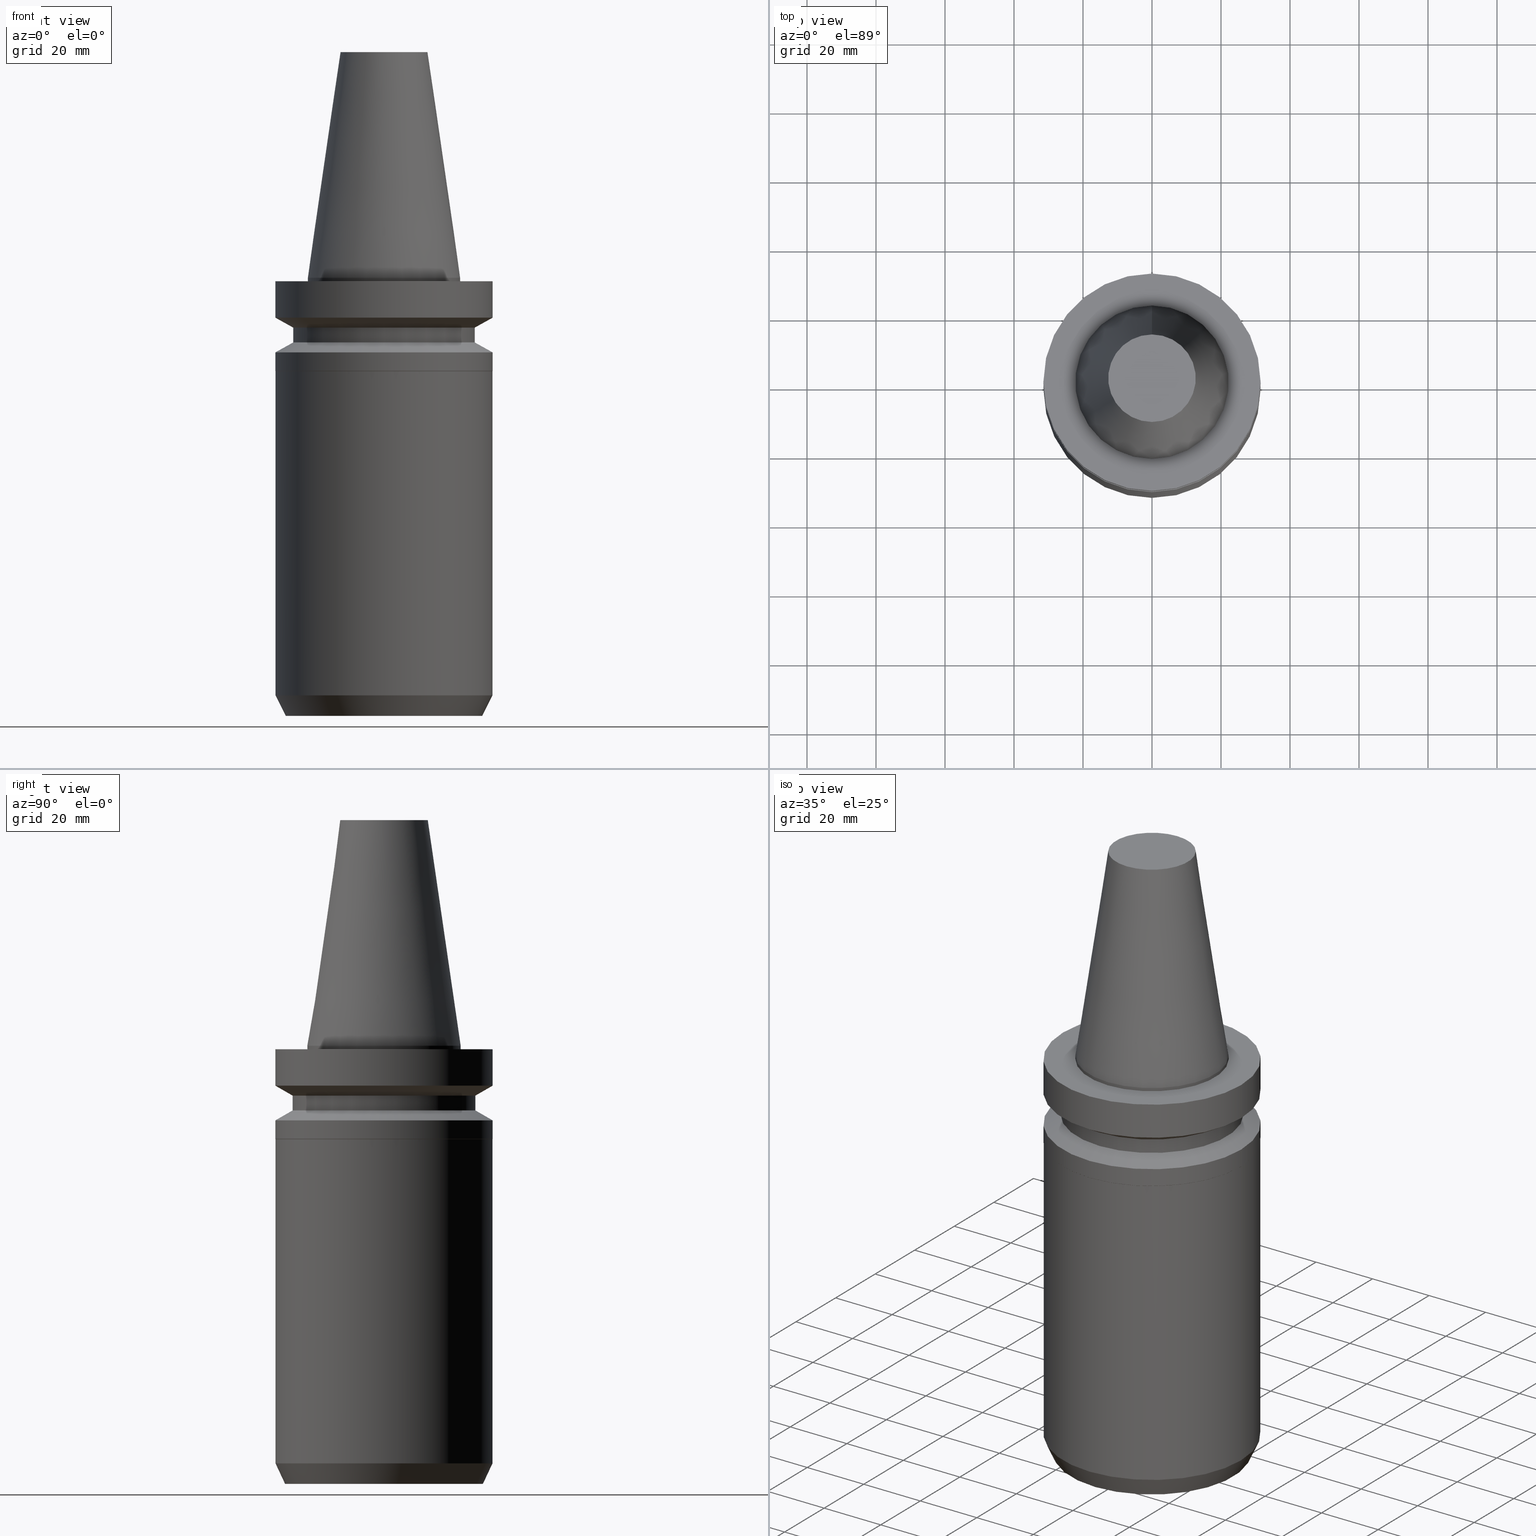
[diagram: canonical four-view strip — front | top / right | iso, engineering-drawing reading convention]
A machine part, canonical four-view strip (front | top / right | iso — engineering-drawing reading convention). The complete STEP part file that produces these views, byte-faithful:
ISO-10303-21;
HEADER;
FILE_DESCRIPTION((''),'1');
FILE_NAME('V:/90_\X2\53D65F9730C730FC30BF\X0\/00_\X2\6DE18DEF30C730FC30BF\X0\/ALL/BBT-BKUS\X2\FF76FF80FF9BFF78FF9E752852A05DE556F3\X0\201801/BBT40-HDC/BBT40-HDC1.250-5.stp','2018-02-07T05:26:37',(''),(''),'Spatial Interop R21 SP3','Kubotek KeyCreator 2011 V10.0.2 (22737)',' ');
FILE_SCHEMA(('automotive_design'));
ENDSEC;
DATA;
#1=MECHANICAL_DESIGN_GEOMETRIC_PRESENTATION_REPRESENTATION(' ',(#10,#11,#12,#13,#14,#15,#16,#17,#18,#19,#20,#21,#22,#23,#24,#25,#26,#27,#28,#29,#30,#31,#32,#33,#34,#35),#6);
#2=PRODUCT_DEFINITION_CONTEXT('',#36,'design');
#3=APPLICATION_PROTOCOL_DEFINITION('INTERNATIONAL STANDARD','automotive_design',1994,#36);
#4=PRODUCT_CATEGORY_RELATIONSHIP('NONE','NONE',#37,#38);
#5=SHAPE_DEFINITION_REPRESENTATION(#39,#40);
#6= (GEOMETRIC_REPRESENTATION_CONTEXT(3)GLOBAL_UNCERTAINTY_ASSIGNED_CONTEXT((#43))GLOBAL_UNIT_ASSIGNED_CONTEXT((#45,#46,#47))REPRESENTATION_CONTEXT('NONE','WORKSPACE'));
#10=STYLED_ITEM('',(#49,#50),#51);
#11=STYLED_ITEM('',(#52,#53),#54);
#12=STYLED_ITEM('',(#55),#56);
#13=STYLED_ITEM('',(#57,#58),#59);
#14=STYLED_ITEM('',(#60),#61);
#15=STYLED_ITEM('',(#62,#63),#64);
#16=STYLED_ITEM('',(#65),#66);
#17=STYLED_ITEM('',(#67),#68);
#18=STYLED_ITEM('',(#69),#70);
#19=STYLED_ITEM('',(#71),#72);
#20=STYLED_ITEM('',(#73,#74),#75);
#21=STYLED_ITEM('',(#76,#77),#78);
#22=STYLED_ITEM('',(#79,#80),#81);
#23=STYLED_ITEM('',(#82),#83);
#24=STYLED_ITEM('',(#84,#85),#86);
#25=STYLED_ITEM('',(#87),#88);
#26=STYLED_ITEM('',(#89,#90),#91);
#27=STYLED_ITEM('',(#92),#93);
#28=STYLED_ITEM('',(#94,#95),#96);
#29=STYLED_ITEM('',(#97,#98),#99);
#30=STYLED_ITEM('',(#100,#101),#102);
#31=STYLED_ITEM('',(#103,#104),#105);
#32=STYLED_ITEM('',(#106,#107),#108);
#33=STYLED_ITEM('',(#109),#110);
#34=STYLED_ITEM('',(#111),#112);
#35=STYLED_ITEM('',(#113),#114);
#36=APPLICATION_CONTEXT(' ');
#37=PRODUCT_CATEGORY('part','NONE');
#38=PRODUCT_RELATED_PRODUCT_CATEGORY('detail',' ',(#115));
#39=PRODUCT_DEFINITION_SHAPE('NONE','NONE',#116);
#40=ADVANCED_BREP_SHAPE_REPRESENTATION('Unnamed[1]',(#75,#117),#6);
#43=UNCERTAINTY_MEASURE_WITH_UNIT(LENGTH_MEASURE(1.0E-006),#45,'','');
#45= (CONVERSION_BASED_UNIT('MILLIMETRE',#120)LENGTH_UNIT()NAMED_UNIT(#123));
#46= (NAMED_UNIT(#125)PLANE_ANGLE_UNIT()SI_UNIT($,.RADIAN.));
#47= (NAMED_UNIT(#125)SOLID_ANGLE_UNIT()SI_UNIT($,.STERADIAN.));
#49=PRESENTATION_STYLE_ASSIGNMENT((#131));
#50=PRESENTATION_STYLE_ASSIGNMENT((#132));
#51=ADVANCED_FACE('Unnamed[1]',(#133,#134),#135,.T.);
#52=PRESENTATION_STYLE_ASSIGNMENT((#136));
#53=PRESENTATION_STYLE_ASSIGNMENT((#137));
#54=ADVANCED_FACE('Unnamed[1]',(#138,#139),#140,.T.);
#55=PRESENTATION_STYLE_ASSIGNMENT((#141));
#56=EDGE_CURVE('Unnamed[1]',#142,#142,#143,.T.);
#57=PRESENTATION_STYLE_ASSIGNMENT((#144));
#58=PRESENTATION_STYLE_ASSIGNMENT((#145));
#59=ADVANCED_FACE('Unnamed[1]',(#146,#147),#148,.T.);
#60=PRESENTATION_STYLE_ASSIGNMENT((#149));
#61=EDGE_CURVE('Unnamed[1]',#150,#150,#151,.T.);
#62=PRESENTATION_STYLE_ASSIGNMENT((#152));
#63=PRESENTATION_STYLE_ASSIGNMENT((#153));
#64=ADVANCED_FACE('Unnamed[1]',(#154,#155),#156,.T.);
#65=PRESENTATION_STYLE_ASSIGNMENT((#157));
#66=EDGE_CURVE('Unnamed[1]',#158,#158,#159,.T.);
#67=PRESENTATION_STYLE_ASSIGNMENT((#160));
#68=EDGE_CURVE('Unnamed[1]',#161,#161,#162,.T.);
#69=PRESENTATION_STYLE_ASSIGNMENT((#163));
#70=EDGE_CURVE('Unnamed[1]',#164,#164,#165,.T.);
#71=PRESENTATION_STYLE_ASSIGNMENT((#166));
#72=EDGE_CURVE('Unnamed[1]',#167,#167,#168,.T.);
#73=PRESENTATION_STYLE_ASSIGNMENT((#169));
#74=PRESENTATION_STYLE_ASSIGNMENT((#170));
#75=MANIFOLD_SOLID_BREP('Unnamed[1]',#171);
#76=PRESENTATION_STYLE_ASSIGNMENT((#172));
#77=PRESENTATION_STYLE_ASSIGNMENT((#173));
#78=ADVANCED_FACE('Unnamed[1]',(#174,#175),#176,.T.);
#79=PRESENTATION_STYLE_ASSIGNMENT((#177));
#80=PRESENTATION_STYLE_ASSIGNMENT((#178));
#81=ADVANCED_FACE('Unnamed[1]',(#179,#180),#181,.T.);
#82=PRESENTATION_STYLE_ASSIGNMENT((#182));
#83=EDGE_CURVE('Unnamed[1]',#183,#183,#184,.T.);
#84=PRESENTATION_STYLE_ASSIGNMENT((#185));
#85=PRESENTATION_STYLE_ASSIGNMENT((#186));
#86=ADVANCED_FACE('Unnamed[1]',(#187,#188),#189,.T.);
#87=PRESENTATION_STYLE_ASSIGNMENT((#190));
#88=EDGE_CURVE('Unnamed[1]',#191,#191,#192,.T.);
#89=PRESENTATION_STYLE_ASSIGNMENT((#193));
#90=PRESENTATION_STYLE_ASSIGNMENT((#194));
#91=ADVANCED_FACE('Unnamed[1]',(#195,#196),#197,.T.);
#92=PRESENTATION_STYLE_ASSIGNMENT((#198));
#93=EDGE_CURVE('Unnamed[1]',#199,#199,#200,.T.);
#94=PRESENTATION_STYLE_ASSIGNMENT((#201));
#95=PRESENTATION_STYLE_ASSIGNMENT((#202));
#96=ADVANCED_FACE('Unnamed[1]',(#203,#204),#205,.T.);
#97=PRESENTATION_STYLE_ASSIGNMENT((#206));
#98=PRESENTATION_STYLE_ASSIGNMENT((#207));
#99=ADVANCED_FACE('Unnamed[1]',(#208,#209),#210,.T.);
#100=PRESENTATION_STYLE_ASSIGNMENT((#211));
#101=PRESENTATION_STYLE_ASSIGNMENT((#212));
#102=ADVANCED_FACE('Unnamed[1]',(#213),#214,.T.);
#103=PRESENTATION_STYLE_ASSIGNMENT((#215));
#104=PRESENTATION_STYLE_ASSIGNMENT((#216));
#105=ADVANCED_FACE('Unnamed[1]',(#217),#218,.T.);
#106=PRESENTATION_STYLE_ASSIGNMENT((#219));
#107=PRESENTATION_STYLE_ASSIGNMENT((#220));
#108=ADVANCED_FACE('Unnamed[1]',(#221,#222),#223,.T.);
#109=PRESENTATION_STYLE_ASSIGNMENT((#224));
#110=EDGE_CURVE('Unnamed[1]',#225,#225,#226,.T.);
#111=PRESENTATION_STYLE_ASSIGNMENT((#227));
#112=EDGE_CURVE('Unnamed[1]',#228,#228,#229,.T.);
#113=PRESENTATION_STYLE_ASSIGNMENT((#230));
#114=EDGE_CURVE('Unnamed[1]',#231,#231,#232,.T.);
#115=PRODUCT('Unnamed[1]','Unnamed[1]','PART-Unnamed[1]-DESC',(#233));
#116=PRODUCT_DEFINITION('NONE','NONE',#234,#2);
#117=AXIS2_PLACEMENT_3D('',#235,#236,#237);
#120=LENGTH_MEASURE_WITH_UNIT(LENGTH_MEASURE(1.0),#238);
#123=DIMENSIONAL_EXPONENTS(1.0,0.0,0.0,0.0,0.0,0.0,0.0);
#125=DIMENSIONAL_EXPONENTS(0.0,0.0,0.0,0.0,0.0,0.0,0.0);
#131=SURFACE_STYLE_USAGE(.BOTH.,#239);
#132=CURVE_STYLE('',#240,POSITIVE_LENGTH_MEASURE(1000.0),#241);
#133=FACE_BOUND('',#242,.T.);
#134=FACE_BOUND('',#243,.T.);
#135=CYLINDRICAL_SURFACE('',#244,31.5000000000005);
#136=SURFACE_STYLE_USAGE(.BOTH.,#245);
#137=CURVE_STYLE('',#246,POSITIVE_LENGTH_MEASURE(1000.0),#247);
#138=FACE_BOUND('',#248,.T.);
#139=FACE_BOUND('',#249,.T.);
#140=CONICAL_SURFACE('',#250,31.4750000000003,0.785398163388566);
#141=CURVE_STYLE('',#251,POSITIVE_LENGTH_MEASURE(1000.0),#252);
#142=VERTEX_POINT('',#253);
#143=CIRCLE('',#254,31.5000000000003);
#144=SURFACE_STYLE_USAGE(.BOTH.,#255);
#145=CURVE_STYLE('',#256,POSITIVE_LENGTH_MEASURE(1000.0),#257);
#146=FACE_BOUND('',#258,.T.);
#147=FACE_BOUND('',#259,.T.);
#148=CONICAL_SURFACE('',#260,17.4562500000001,0.144812498238936);
#149=CURVE_STYLE('',#261,POSITIVE_LENGTH_MEASURE(1000.0),#262);
#150=VERTEX_POINT('',#263);
#151=CIRCLE('',#264,26.4999999999994);
#152=SURFACE_STYLE_USAGE(.BOTH.,#265);
#153=CURVE_STYLE('',#266,POSITIVE_LENGTH_MEASURE(1000.0),#267);
#154=FACE_BOUND('',#268,.T.);
#155=FACE_BOUND('',#269,.T.);
#156=CONICAL_SURFACE('',#270,28.9999999999999,1.04719755119657);
#157=CURVE_STYLE('',#271,POSITIVE_LENGTH_MEASURE(1000.0),#272);
#158=VERTEX_POINT('',#273);
#159=CIRCLE('',#274,31.4500000000001);
#160=CURVE_STYLE('',#275,POSITIVE_LENGTH_MEASURE(1000.0),#276);
#161=VERTEX_POINT('',#277);
#162=CIRCLE('',#278,31.5000000000007);
#163=CURVE_STYLE('',#279,POSITIVE_LENGTH_MEASURE(1000.0),#280);
#164=VERTEX_POINT('',#281);
#165=CIRCLE('',#282,31.5000000000003);
#166=CURVE_STYLE('',#283,POSITIVE_LENGTH_MEASURE(1000.0),#284);
#167=VERTEX_POINT('',#285);
#168=CIRCLE('',#286,28.6735846392919);
#169=SURFACE_STYLE_USAGE(.BOTH.,#287);
#170=CURVE_STYLE('',#288,POSITIVE_LENGTH_MEASURE(1000.0),#289);
#171=CLOSED_SHELL('',(#102,#59,#99,#96,#108,#64,#78,#91,#51,#54,#86,#81,#105));
#172=SURFACE_STYLE_USAGE(.BOTH.,#290);
#173=CURVE_STYLE('',#291,POSITIVE_LENGTH_MEASURE(1000.0),#292);
#174=FACE_BOUND('',#293,.T.);
#175=FACE_BOUND('',#294,.T.);
#176=CYLINDRICAL_SURFACE('',#295,26.4999999999997);
#177=SURFACE_STYLE_USAGE(.BOTH.,#296);
#178=CURVE_STYLE('',#297,POSITIVE_LENGTH_MEASURE(1000.0),#298);
#179=FACE_BOUND('',#299,.T.);
#180=FACE_BOUND('',#300,.T.);
#181=CONICAL_SURFACE('',#301,30.061792319646,0.436332312998583);
#182=CURVE_STYLE('',#302,POSITIVE_LENGTH_MEASURE(1000.0),#303);
#183=VERTEX_POINT('',#304);
#184=CIRCLE('',#305,22.225);
#185=SURFACE_STYLE_USAGE(.BOTH.,#306);
#186=CURVE_STYLE('',#307,POSITIVE_LENGTH_MEASURE(1000.0),#308);
#187=FACE_BOUND('',#309,.T.);
#188=FACE_BOUND('',#310,.T.);
#189=CYLINDRICAL_SURFACE('',#311,31.4500000000001);
#190=CURVE_STYLE('',#312,POSITIVE_LENGTH_MEASURE(1000.0),#313);
#191=VERTEX_POINT('',#314);
#192=CIRCLE('',#315,12.6875000000001);
#193=SURFACE_STYLE_USAGE(.BOTH.,#316);
#194=CURVE_STYLE('',#317,POSITIVE_LENGTH_MEASURE(1000.0),#318);
#195=FACE_BOUND('',#319,.T.);
#196=FACE_BOUND('',#320,.T.);
#197=CONICAL_SURFACE('',#321,29.0000000000003,1.04719755119651);
#198=CURVE_STYLE('',#322,POSITIVE_LENGTH_MEASURE(1000.0),#323);
#199=VERTEX_POINT('',#324);
#200=CIRCLE('',#325,31.4999999999996);
#201=SURFACE_STYLE_USAGE(.BOTH.,#326);
#202=CURVE_STYLE('',#327,POSITIVE_LENGTH_MEASURE(1000.0),#328);
#203=FACE_OUTER_BOUND('',#329,.T.);
#204=FACE_BOUND('',#330,.T.);
#205=PLANE('',#331);
#206=SURFACE_STYLE_USAGE(.BOTH.,#332);
#207=CURVE_STYLE('',#333,POSITIVE_LENGTH_MEASURE(1000.0),#334);
#208=FACE_BOUND('',#335,.T.);
#209=FACE_BOUND('',#336,.T.);
#210=CYLINDRICAL_SURFACE('',#337,22.225);
#211=SURFACE_STYLE_USAGE(.BOTH.,#338);
#212=CURVE_STYLE('',#339,POSITIVE_LENGTH_MEASURE(1000.0),#340);
#213=FACE_OUTER_BOUND('',#341,.T.);
#214=PLANE('',#342);
#215=SURFACE_STYLE_USAGE(.BOTH.,#343);
#216=CURVE_STYLE('',#344,POSITIVE_LENGTH_MEASURE(1000.0),#345);
#217=FACE_OUTER_BOUND('',#346,.T.);
#218=PLANE('',#347);
#219=SURFACE_STYLE_USAGE(.BOTH.,#348);
#220=CURVE_STYLE('',#349,POSITIVE_LENGTH_MEASURE(1000.0),#350);
#221=FACE_BOUND('',#351,.T.);
#222=FACE_BOUND('',#352,.T.);
#223=CYLINDRICAL_SURFACE('',#353,31.5);
#224=CURVE_STYLE('',#354,POSITIVE_LENGTH_MEASURE(1000.0),#355);
#225=VERTEX_POINT('',#356);
#226=CIRCLE('',#357,26.5);
#227=CURVE_STYLE('',#358,POSITIVE_LENGTH_MEASURE(1000.0),#359);
#228=VERTEX_POINT('',#360);
#229=CIRCLE('',#361,31.4500000000002);
#230=CURVE_STYLE('',#362,POSITIVE_LENGTH_MEASURE(1000.0),#363);
#231=VERTEX_POINT('',#364);
#232=CIRCLE('',#365,22.225);
#233=PRODUCT_CONTEXT('',#36,'mechanical');
#234=PRODUCT_DEFINITION_FORMATION_WITH_SPECIFIED_SOURCE(' ','NONE',#115,.NOT_KNOWN.);
#235=CARTESIAN_POINT('',(0.0,0.0,0.0));
#236=DIRECTION('',(0.0,0.0,1.0));
#237=DIRECTION('',(1.0,0.0,0.0));
#238= (NAMED_UNIT(#123)LENGTH_UNIT()SI_UNIT(.MILLI.,.METRE.));
#239=SURFACE_SIDE_STYLE('',(#367));
#240=DRAUGHTING_PRE_DEFINED_CURVE_FONT('continuous');
#241=COLOUR_RGB('',0.0,1.0,0.0);
#242=EDGE_LOOP('',(#368));
#243=EDGE_LOOP('',(#369));
#244=AXIS2_PLACEMENT_3D('',#370,#371,#372);
#245=SURFACE_SIDE_STYLE('',(#373));
#246=DRAUGHTING_PRE_DEFINED_CURVE_FONT('continuous');
#247=COLOUR_RGB('',0.0,1.0,0.0);
#248=EDGE_LOOP('',(#374));
#249=EDGE_LOOP('',(#375));
#250=AXIS2_PLACEMENT_3D('',#376,#377,#378);
#251=DRAUGHTING_PRE_DEFINED_CURVE_FONT('continuous');
#252=COLOUR_RGB('',0.0,1.0,0.0);
#253=CARTESIAN_POINT('',(1.65327317884893E-015,31.5000000000004,-27.0));
#254=AXIS2_PLACEMENT_3D('',#379,#380,#381);
#255=SURFACE_SIDE_STYLE('',(#382));
#256=DRAUGHTING_PRE_DEFINED_CURVE_FONT('continuous');
#257=COLOUR_RGB('',0.0,1.0,0.0);
#258=EDGE_LOOP('',(#383));
#259=EDGE_LOOP('',(#384));
#260=AXIS2_PLACEMENT_3D('',#385,#386,#387);
#261=DRAUGHTING_PRE_DEFINED_CURVE_FONT('continuous');
#262=COLOUR_RGB('',0.0,1.0,0.0);
#263=CARTESIAN_POINT('',(8.8494551369045E-016,26.4999999999995,-14.4522569986152));
#264=AXIS2_PLACEMENT_3D('',#388,#389,#390);
#265=SURFACE_SIDE_STYLE('',(#391));
#266=DRAUGHTING_PRE_DEFINED_CURVE_FONT('continuous');
#267=COLOUR_RGB('',0.0,1.0,0.0);
#268=EDGE_LOOP('',(#392));
#269=EDGE_LOOP('',(#393));
#270=AXIS2_PLACEMENT_3D('',#394,#395,#396);
#271=DRAUGHTING_PRE_DEFINED_CURVE_FONT('continuous');
#272=COLOUR_RGB('',0.0,1.0,0.0);
#273=CARTESIAN_POINT('',(7.41192725346147E-015,31.4500000000001,-121.045958044751));
#274=AXIS2_PLACEMENT_3D('',#397,#398,#399);
#275=DRAUGHTING_PRE_DEFINED_CURVE_FONT('continuous');
#276=COLOUR_RGB('',0.0,1.0,0.0);
#277=CARTESIAN_POINT('',(1.32473071268174E-015,31.5000000000007,-21.6344943473346));
#278=AXIS2_PLACEMENT_3D('',#400,#401,#402);
#279=DRAUGHTING_PRE_DEFINED_CURVE_FONT('continuous');
#280=COLOUR_RGB('',0.0,1.0,0.0);
#281=CARTESIAN_POINT('',(7.08182973902924E-016,31.5000000000004,-11.5655056526664));
#282=AXIS2_PLACEMENT_3D('',#403,#404,#405);
#283=DRAUGHTING_PRE_DEFINED_CURVE_FONT('continuous');
#284=COLOUR_RGB('',0.0,1.0,0.0);
#285=CARTESIAN_POINT('',(7.77650717458563E-015,28.6735846392919,-126.999999999999));
#286=AXIS2_PLACEMENT_3D('',#406,#407,#408);
#287=SURFACE_SIDE_STYLE('',(#409));
#288=DRAUGHTING_PRE_DEFINED_CURVE_FONT('continuous');
#289=COLOUR_RGB('',0.0,1.0,0.0);
#290=SURFACE_SIDE_STYLE('',(#410));
#291=DRAUGHTING_PRE_DEFINED_CURVE_FONT('continuous');
#292=COLOUR_RGB('',0.0,1.0,0.0);
#293=EDGE_LOOP('',(#411));
#294=EDGE_LOOP('',(#412));
#295=AXIS2_PLACEMENT_3D('',#413,#414,#415);
#296=SURFACE_SIDE_STYLE('',(#416));
#297=DRAUGHTING_PRE_DEFINED_CURVE_FONT('continuous');
#298=COLOUR_RGB('',0.0,1.0,0.0);
#299=EDGE_LOOP('',(#417));
#300=EDGE_LOOP('',(#418));
#301=AXIS2_PLACEMENT_3D('',#419,#420,#421);
#302=DRAUGHTING_PRE_DEFINED_CURVE_FONT('continuous');
#303=COLOUR_RGB('',0.0,1.0,0.0);
#304=CARTESIAN_POINT('',(1.71319921032766E-029,22.2250000000001,-2.8153873565375E-013));
#305=AXIS2_PLACEMENT_3D('',#422,#423,#424);
#306=SURFACE_SIDE_STYLE('',(#425));
#307=DRAUGHTING_PRE_DEFINED_CURVE_FONT('continuous');
#308=COLOUR_RGB('',0.0,1.0,0.0);
#309=EDGE_LOOP('',(#426));
#310=EDGE_LOOP('',(#427));
#311=AXIS2_PLACEMENT_3D('',#428,#429,#430);
#312=DRAUGHTING_PRE_DEFINED_CURVE_FONT('continuous');
#313=COLOUR_RGB('',0.0,1.0,0.0);
#314=CARTESIAN_POINT('',(-4.00459503321185E-015,12.6875000000002,65.4000000000001));
#315=AXIS2_PLACEMENT_3D('',#431,#432,#433);
#316=SURFACE_SIDE_STYLE('',(#434));
#317=DRAUGHTING_PRE_DEFINED_CURVE_FONT('continuous');
#318=COLOUR_RGB('',0.0,1.0,0.0);
#319=EDGE_LOOP('',(#435));
#320=EDGE_LOOP('',(#436));
#321=AXIS2_PLACEMENT_3D('',#437,#438,#439);
#322=DRAUGHTING_PRE_DEFINED_CURVE_FONT('continuous');
#323=COLOUR_RGB('',0.0,1.0,0.0);
#324=CARTESIAN_POINT('',(6.12323399573568E-017,31.4999999999997,-0.999999999999825));
#325=AXIS2_PLACEMENT_3D('',#440,#441,#442);
#326=SURFACE_SIDE_STYLE('',(#443));
#327=DRAUGHTING_PRE_DEFINED_CURVE_FONT('continuous');
#328=COLOUR_RGB('',0.0,1.0,0.0);
#329=EDGE_LOOP('',(#444));
#330=EDGE_LOOP('',(#445));
#331=AXIS2_PLACEMENT_3D('',#446,#447,#448);
#332=SURFACE_SIDE_STYLE('',(#449));
#333=DRAUGHTING_PRE_DEFINED_CURVE_FONT('continuous');
#334=COLOUR_RGB('',0.0,1.0,0.0);
#335=EDGE_LOOP('',(#450));
#336=EDGE_LOOP('',(#451));
#337=AXIS2_PLACEMENT_3D('',#452,#453,#454);
#338=SURFACE_SIDE_STYLE('',(#455));
#339=DRAUGHTING_PRE_DEFINED_CURVE_FONT('continuous');
#340=COLOUR_RGB('',0.0,1.0,0.0);
#341=EDGE_LOOP('',(#456));
#342=AXIS2_PLACEMENT_3D('',#457,#458,#459);
#343=SURFACE_SIDE_STYLE('',(#460));
#344=DRAUGHTING_PRE_DEFINED_CURVE_FONT('continuous');
#345=COLOUR_RGB('',0.0,1.0,0.0);
#346=EDGE_LOOP('',(#461));
#347=AXIS2_PLACEMENT_3D('',#462,#463,#464);
#348=SURFACE_SIDE_STYLE('',(#465));
#349=DRAUGHTING_PRE_DEFINED_CURVE_FONT('continuous');
#350=COLOUR_RGB('',0.0,1.0,0.0);
#351=EDGE_LOOP('',(#466));
#352=EDGE_LOOP('',(#467));
#353=AXIS2_PLACEMENT_3D('',#468,#469,#470);
#354=DRAUGHTING_PRE_DEFINED_CURVE_FONT('continuous');
#355=COLOUR_RGB('',0.0,1.0,0.0);
#356=CARTESIAN_POINT('',(1.1479681728942E-015,26.5,-18.7477430013855));
#357=AXIS2_PLACEMENT_3D('',#471,#472,#473);
#358=DRAUGHTING_PRE_DEFINED_CURVE_FONT('continuous');
#359=COLOUR_RGB('',0.0,1.0,0.0);
#360=CARTESIAN_POINT('',(1.65633479584686E-015,31.4500000000002,-27.0500000000011));
#361=AXIS2_PLACEMENT_3D('',#474,#475,#476);
#362=DRAUGHTING_PRE_DEFINED_CURVE_FONT('continuous');
#363=COLOUR_RGB('',0.0,1.0,0.0);
#364=CARTESIAN_POINT('',(6.12323399573622E-017,22.2250000000001,-0.999999999999912));
#365=AXIS2_PLACEMENT_3D('',#477,#478,#479);
#367=SURFACE_STYLE_FILL_AREA(#480);
#368=ORIENTED_EDGE('',*,*,#56,.F.);
#369=ORIENTED_EDGE('',*,*,#68,.T.);
#370=CARTESIAN_POINT('',(1.48900194576534E-015,4.84645246943302E-014,-24.3172471736673));
#371=DIRECTION('',(6.12323399573677E-017,-3.16409739642793E-016,-1.0));
#372=DIRECTION('',(1.45473560128601E-032,1.0,-3.16409739642793E-016));
#373=SURFACE_STYLE_FILL_AREA(#481);
#374=ORIENTED_EDGE('',*,*,#112,.F.);
#375=ORIENTED_EDGE('',*,*,#56,.T.);
#376=CARTESIAN_POINT('',(1.6548039873479E-015,4.7607765327533E-014,-27.0250000000006));
#377=DIRECTION('',(-6.12323399573676E-017,3.16409739642798E-016,1.0));
#378=DIRECTION('',(1.45473560128629E-032,1.0,-3.16409739642798E-016));
#379=CARTESIAN_POINT('',(1.65327317884893E-015,4.76156755710243E-014,-27.0));
#380=DIRECTION('',(6.12323399573676E-017,-3.16409739642795E-016,-1.0));
#381=DIRECTION('',(1.45473560128602E-032,1.0,-3.16409739642795E-016));
#382=SURFACE_STYLE_FILL_AREA(#482);
#383=ORIENTED_EDGE('',*,*,#83,.F.);
#384=ORIENTED_EDGE('',*,*,#88,.T.);
#385=CARTESIAN_POINT('',(-2.00229751660592E-015,6.65053370276992E-014,32.6999999999999));
#386=DIRECTION('',(6.12323399573677E-017,-3.16409739642807E-016,-1.0));
#387=DIRECTION('',(1.45473560128573E-032,1.0,-3.16409739642807E-016));
#388=CARTESIAN_POINT('',(8.84945513690449E-016,5.15859036671972E-014,-14.4522569986152));
#389=DIRECTION('',(6.12323399573676E-017,-3.16409739642818E-016,-1.0));
#390=DIRECTION('',(1.45473560128599E-032,1.0,-3.16409739642818E-016));
#391=SURFACE_STYLE_FILL_AREA(#483);
#392=ORIENTED_EDGE('',*,*,#61,.F.);
#393=ORIENTED_EDGE('',*,*,#70,.T.);
#394=CARTESIAN_POINT('',(7.96564243796687E-016,5.20426017880898E-014,-13.0088813256408));
#395=DIRECTION('',(-6.12323399573677E-017,3.16409739642778E-016,1.0));
#396=DIRECTION('',(1.4547356012857E-032,1.0,-3.16409739642778E-016));
#397=CARTESIAN_POINT('',(7.41192725346147E-015,1.78586184716271E-014,-121.045958044751));
#398=DIRECTION('',(6.12323399573677E-017,-3.16409739642802E-016,-1.0));
#399=DIRECTION('',(1.45473560128628E-032,1.0,-3.16409739642802E-016));
#400=CARTESIAN_POINT('',(1.32473071268174E-015,4.93133738176361E-014,-21.6344943473346));
#401=DIRECTION('',(6.12323399573677E-017,-3.16409739642792E-016,-1.0));
#402=DIRECTION('',(1.45473560128572E-032,1.0,-3.16409739642792E-016));
#403=CARTESIAN_POINT('',(7.08182973902923E-016,5.24992999089823E-014,-11.5655056526663));
#404=DIRECTION('',(6.12323399573677E-017,-3.16409739642795E-016,-1.0));
#405=DIRECTION('',(1.45473560128602E-032,1.0,-3.16409739642795E-016));
#406=CARTESIAN_POINT('',(7.77650717458563E-015,1.59747016067449E-014,-126.999999999999));
#407=DIRECTION('',(6.12323399573677E-017,-3.1640973964281E-016,-1.0));
#408=DIRECTION('',(1.45473560128616E-032,1.0,-3.1640973964281E-016));
#409=SURFACE_STYLE_FILL_AREA(#484);
#410=SURFACE_STYLE_FILL_AREA(#485);
#411=ORIENTED_EDGE('',*,*,#110,.F.);
#412=ORIENTED_EDGE('',*,*,#61,.T.);
#413=CARTESIAN_POINT('',(1.01645684329232E-015,5.09063368633093E-014,-16.6000000000003));
#414=DIRECTION('',(6.12323399573677E-017,-3.16409739642814E-016,-1.0));
#415=DIRECTION('',(1.45473560128632E-032,1.0,-3.16409739642814E-016));
#416=SURFACE_STYLE_FILL_AREA(#486);
#417=ORIENTED_EDGE('',*,*,#72,.F.);
#418=ORIENTED_EDGE('',*,*,#66,.T.);
#419=CARTESIAN_POINT('',(7.59421721402355E-015,1.6916660039186E-014,-124.022979022375));
#420=DIRECTION('',(-6.12323399573677E-017,3.16409739642806E-016,1.0));
#421=DIRECTION('',(1.45473560128578E-032,1.0,-3.16409739642806E-016));
#422=CARTESIAN_POINT('',(1.65331138531142E-029,5.61587385413797E-014,-2.70006239588838E-013));
#423=DIRECTION('',(6.12323399573677E-017,-3.16409739642804E-016,-1.0));
#424=DIRECTION('',(1.45473560128617E-032,1.0,-3.16409739642804E-016));
#425=SURFACE_STYLE_FILL_AREA(#487);
#426=ORIENTED_EDGE('',*,*,#66,.F.);
#427=ORIENTED_EDGE('',*,*,#112,.T.);
#428=CARTESIAN_POINT('',(4.53413102465417E-015,3.27292367778345E-014,-74.0479790223762));
#429=DIRECTION('',(6.12323399573677E-017,-3.16409739642802E-016,-1.0));
#430=DIRECTION('',(1.45473560128656E-032,1.0,-3.16409739642802E-016));
#431=CARTESIAN_POINT('',(-4.00459503321185E-015,7.68519355140187E-014,65.4000000000001));
#432=DIRECTION('',(6.12323399573677E-017,-3.16409739642813E-016,-1.0));
#433=DIRECTION('',(1.45473560128639E-032,1.0,-3.16409739642813E-016));
#434=SURFACE_STYLE_FILL_AREA(#488);
#435=ORIENTED_EDGE('',*,*,#68,.F.);
#436=ORIENTED_EDGE('',*,*,#110,.T.);
#437=CARTESIAN_POINT('',(1.23634944278797E-015,4.97700719385287E-014,-20.1911186743601));
#438=DIRECTION('',(6.12323399573677E-017,-3.16409739642773E-016,-1.0));
#439=DIRECTION('',(1.45473560128598E-032,1.0,-3.16409739642773E-016));
#440=CARTESIAN_POINT('',(6.12323399573563E-017,5.5842328801737E-014,-0.999999999999815));
#441=DIRECTION('',(6.12323399573677E-017,-3.16409739642802E-016,-1.0));
#442=DIRECTION('',(1.45473560128605E-032,1.0,-3.16409739642802E-016));
#443=SURFACE_STYLE_FILL_AREA(#489);
#444=ORIENTED_EDGE('',*,*,#93,.F.);
#445=ORIENTED_EDGE('',*,*,#114,.T.);
#446=CARTESIAN_POINT('',(6.12323399573595E-017,26.8624999999999,-0.999999999999869));
#447=DIRECTION('',(-6.12323399573677E-017,-9.35138060429241E-015,1.0));
#448=DIRECTION('',(5.77434068963536E-031,-1.0,-9.35138060429241E-015));
#449=SURFACE_STYLE_FILL_AREA(#490);
#450=ORIENTED_EDGE('',*,*,#114,.F.);
#451=ORIENTED_EDGE('',*,*,#83,.T.);
#452=CARTESIAN_POINT('',(3.06161699786891E-017,5.60005336715584E-014,-0.500000000000085));
#453=DIRECTION('',(6.12323399573677E-017,-3.16409739642804E-016,-1.0));
#454=DIRECTION('',(1.45473560128617E-032,1.0,-3.16409739642804E-016));
#455=SURFACE_STYLE_FILL_AREA(#491);
#456=ORIENTED_EDGE('',*,*,#88,.F.);
#457=CARTESIAN_POINT('',(-4.00459503321185E-015,6.34375000000014,65.4000000000001));
#458=DIRECTION('',(-6.12323399573677E-017,9.97602686800683E-016,1.0));
#459=DIRECTION('',(-5.62583941297938E-032,-1.0,9.97602686800683E-016));
#460=SURFACE_STYLE_FILL_AREA(#492);
#461=ORIENTED_EDGE('',*,*,#72,.T.);
#462=CARTESIAN_POINT('',(7.77650717458565E-015,14.336792319646,-126.999999999999));
#463=DIRECTION('',(6.12323399573677E-017,2.09379959623412E-014,-1.0));
#464=DIRECTION('',(-1.28690963952284E-030,1.0,2.09379959623412E-014));
#465=SURFACE_STYLE_FILL_AREA(#493);
#466=ORIENTED_EDGE('',*,*,#70,.F.);
#467=ORIENTED_EDGE('',*,*,#93,.T.);
#468=CARTESIAN_POINT('',(3.8470765693014E-016,5.41708143553597E-014,-6.28275282633308));
#469=DIRECTION('',(6.12323399573677E-017,-3.16409739642798E-016,-1.0));
#470=DIRECTION('',(1.45473560128604E-032,1.0,-3.16409739642798E-016));
#471=CARTESIAN_POINT('',(1.1479681728942E-015,5.02267700594213E-014,-18.7477430013855));
#472=DIRECTION('',(6.12323399573677E-017,-3.16409739642811E-016,-1.0));
#473=DIRECTION('',(1.4547356012863E-032,1.0,-3.16409739642811E-016));
#474=CARTESIAN_POINT('',(1.65633479584686E-015,4.75998550840418E-014,-27.0500000000011));
#475=DIRECTION('',(6.12323399573677E-017,-3.16409739642801E-016,-1.0));
#476=DIRECTION('',(1.45473560128628E-032,1.0,-3.16409739642801E-016));
#477=CARTESIAN_POINT('',(6.12323399573616E-017,5.5842328801737E-014,-0.999999999999901));
#478=DIRECTION('',(6.12323399573677E-017,-3.16409739642804E-016,-1.0));
#479=DIRECTION('',(1.45473560128617E-032,1.0,-3.16409739642804E-016));
#480=FILL_AREA_STYLE('',(#494));
#481=FILL_AREA_STYLE('',(#495));
#482=FILL_AREA_STYLE('',(#496));
#483=FILL_AREA_STYLE('',(#497));
#484=FILL_AREA_STYLE('',(#498));
#485=FILL_AREA_STYLE('',(#499));
#486=FILL_AREA_STYLE('',(#500));
#487=FILL_AREA_STYLE('',(#501));
#488=FILL_AREA_STYLE('',(#502));
#489=FILL_AREA_STYLE('',(#503));
#490=FILL_AREA_STYLE('',(#504));
#491=FILL_AREA_STYLE('',(#505));
#492=FILL_AREA_STYLE('',(#506));
#493=FILL_AREA_STYLE('',(#507));
#494=FILL_AREA_STYLE_COLOUR('',#508);
#495=FILL_AREA_STYLE_COLOUR('',#509);
#496=FILL_AREA_STYLE_COLOUR('',#510);
#497=FILL_AREA_STYLE_COLOUR('',#511);
#498=FILL_AREA_STYLE_COLOUR('',#512);
#499=FILL_AREA_STYLE_COLOUR('',#513);
#500=FILL_AREA_STYLE_COLOUR('',#514);
#501=FILL_AREA_STYLE_COLOUR('',#515);
#502=FILL_AREA_STYLE_COLOUR('',#516);
#503=FILL_AREA_STYLE_COLOUR('',#517);
#504=FILL_AREA_STYLE_COLOUR('',#518);
#505=FILL_AREA_STYLE_COLOUR('',#519);
#506=FILL_AREA_STYLE_COLOUR('',#520);
#507=FILL_AREA_STYLE_COLOUR('',#521);
#508=COLOUR_RGB('',0.0,1.0,0.0);
#509=COLOUR_RGB('',0.0,1.0,0.0);
#510=COLOUR_RGB('',0.0,1.0,0.0);
#511=COLOUR_RGB('',0.0,1.0,0.0);
#512=COLOUR_RGB('',0.0,1.0,0.0);
#513=COLOUR_RGB('',0.0,1.0,0.0);
#514=COLOUR_RGB('',0.0,1.0,0.0);
#515=COLOUR_RGB('',0.0,1.0,0.0);
#516=COLOUR_RGB('',0.0,1.0,0.0);
#517=COLOUR_RGB('',0.0,1.0,0.0);
#518=COLOUR_RGB('',0.0,1.0,0.0);
#519=COLOUR_RGB('',0.0,1.0,0.0);
#520=COLOUR_RGB('',0.0,1.0,0.0);
#521=COLOUR_RGB('',0.0,1.0,0.0);
ENDSEC;
END-ISO-10303-21;
